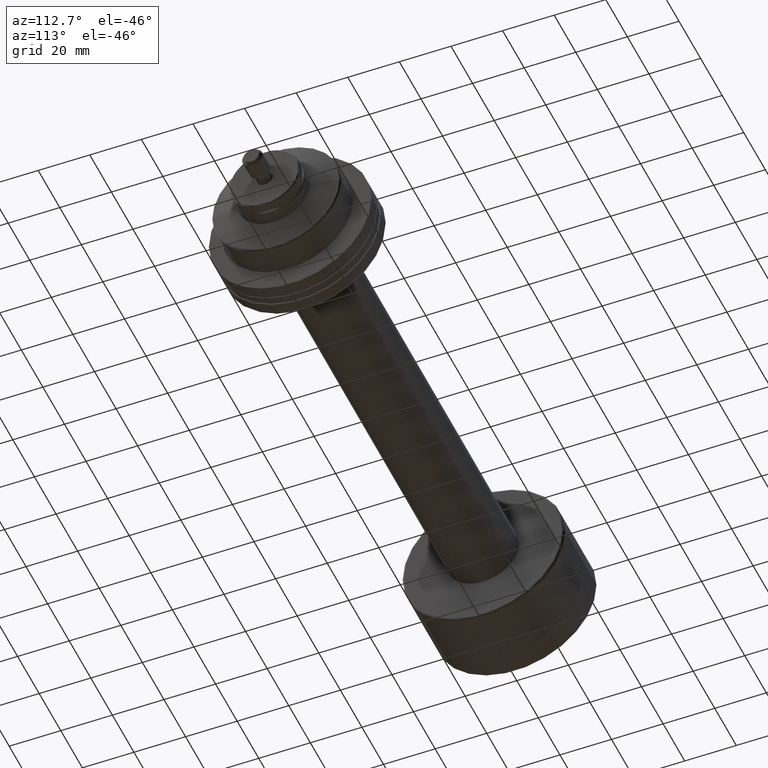
[diagram: clean part render]
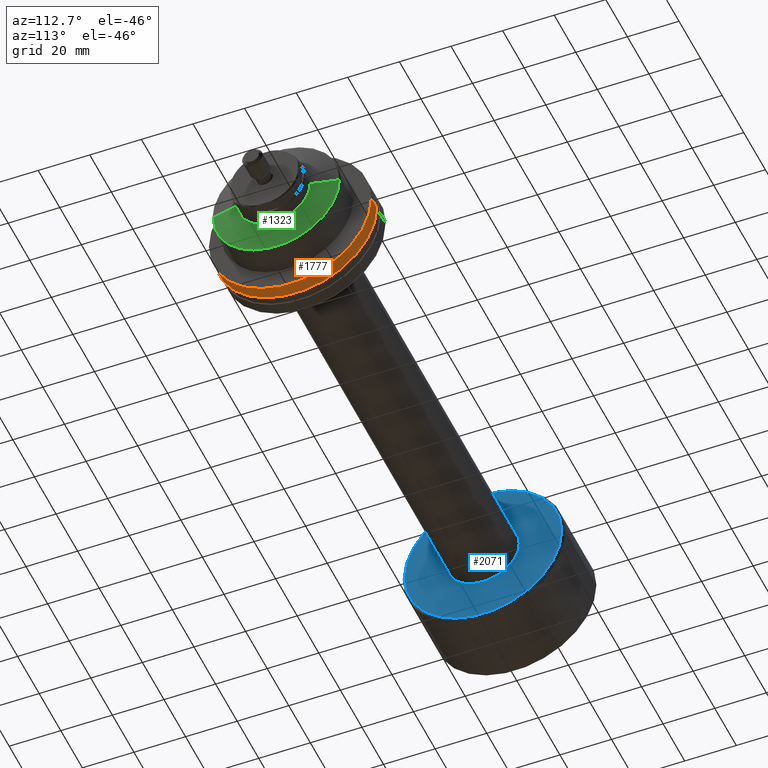
[diagram: same view with three faces highlighted in distinct colors, each labeled with its STEP entity id]
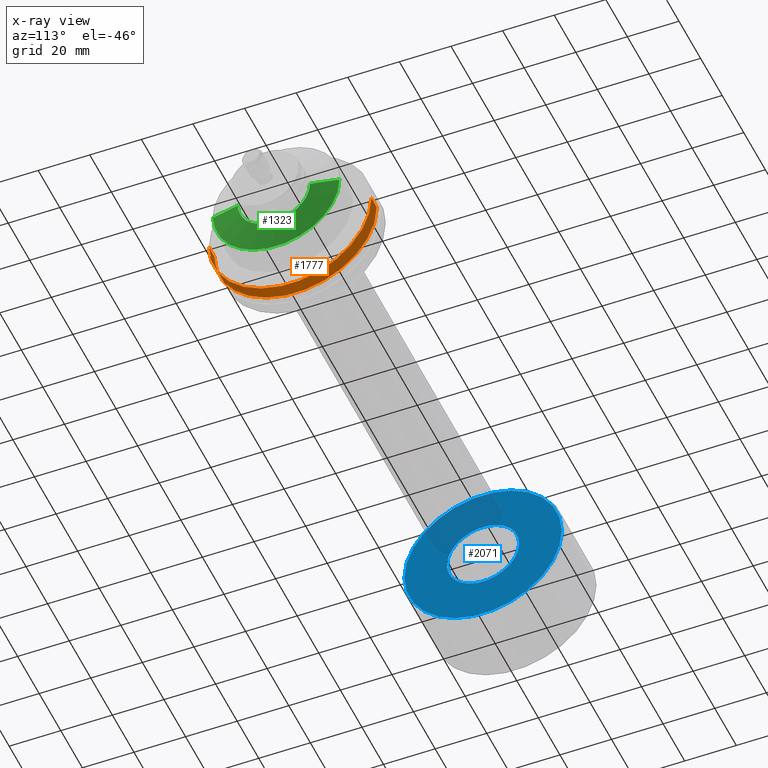
[diagram: x-ray of the same camera — body ghosted, the three highlighted faces saturated]
A machine part, auxiliary view with three faces highlighted in distinct colors.
The next image is the same camera in x-ray (body ghosted, the three faces saturated) — at least one of them is partly hidden behind the body in this view.
Their STEP definitions:

[orange] entity #1777 — the highlighted cylindrical surface (partial cylindrical patch) has radius 31.5 mm, axis along (1, 0, 0).
#92 = CARTESIAN_POINT ( 'NONE',  ( -18.00000000000005684, 2.371756733105773926E-14, 0.000000000000000000 ) ) ;
#94 = EDGE_CURVE ( 'NONE', #164, #2602, #2650, .T. ) ;
#133 = VECTOR ( 'NONE', #1400, 1000.000000000000000 ) ;
#164 = VERTEX_POINT ( 'NONE', #2459 ) ;
#171 = EDGE_CURVE ( 'NONE', #1773, #164, #2422, .T. ) ;
#172 = CARTESIAN_POINT ( 'NONE',  ( -30.28002276692732408, 0.000000000000000000, 0.000000000000000000 ) ) ;
#206 = ORIENTED_EDGE ( 'NONE', *, *, #171, .F. ) ;
#343 = EDGE_CURVE ( 'NONE', #379, #2602, #1014, .T. ) ;
#379 = VERTEX_POINT ( 'NONE', #2546 ) ;
#402 = DIRECTION ( 'NONE',  ( 1.000000000000000000, 1.931394410353556421E-15, -0.000000000000000000 ) ) ;
#577 = AXIS2_PLACEMENT_3D ( 'NONE', #92, #1153, #2631 ) ;
#707 = EDGE_CURVE ( 'NONE', #1773, #379, #1522, .T. ) ;
#791 = CARTESIAN_POINT ( 'NONE',  ( -30.28002276692738803, 31.50000000000001421, 0.000000000000000000 ) ) ;
#799 = DIRECTION ( 'NONE',  ( 1.000000000000000000, 1.931394410353556421E-15, -0.000000000000000000 ) ) ;
#1014 = LINE ( 'NONE', #791, #133 ) ;
#1087 = AXIS2_PLACEMENT_3D ( 'NONE', #172, #402, #1237 ) ;
#1153 = DIRECTION ( 'NONE',  ( 1.000000000000000000, 1.931394410353556421E-15, -0.000000000000000000 ) ) ;
#1165 = CARTESIAN_POINT ( 'NONE',  ( -30.28002276692726014, -31.50000000000001421, 3.857637417314164267E-15 ) ) ;
#1191 = CARTESIAN_POINT ( 'NONE',  ( -23.00000000000006040, 1.406059527928995005E-14, 0.000000000000000000 ) ) ;
#1215 = DIRECTION ( 'NONE',  ( -1.982541115402064518E-15, 1.000000000000000000, 0.000000000000000000 ) ) ;
#1231 = VECTOR ( 'NONE', #2022, 1000.000000000000000 ) ;
#1237 = DIRECTION ( 'NONE',  ( -1.982541115402064518E-15, 1.000000000000000000, 0.000000000000000000 ) ) ;
#1244 = CARTESIAN_POINT ( 'NONE',  ( -18.00000000000012079, 31.50000000000004263, 0.000000000000000000 ) ) ;
#1400 = DIRECTION ( 'NONE',  ( 1.000000000000000000, 1.931394410353556421E-15, -0.000000000000000000 ) ) ;
#1522 = CIRCLE ( 'NONE', #2699, 31.50000000000001421 ) ;
#1561 = ORIENTED_EDGE ( 'NONE', *, *, #94, .F. ) ;
#1605 = ORIENTED_EDGE ( 'NONE', *, *, #343, .T. ) ;
#1661 = EDGE_LOOP ( 'NONE', ( #206, #1769, #1605, #1561 ) ) ;
#1673 = CARTESIAN_POINT ( 'NONE',  ( -23.00000000000000000, -31.50000000000000000, 3.857637417314164267E-15 ) ) ;
#1769 = ORIENTED_EDGE ( 'NONE', *, *, #707, .T. ) ;
#1773 = VERTEX_POINT ( 'NONE', #1673 ) ;
#1777 = ADVANCED_FACE ( 'NONE', ( #2099 ), #2317, .T. ) ;
#2022 = DIRECTION ( 'NONE',  ( 1.000000000000000000, 1.931394410353556421E-15, -0.000000000000000000 ) ) ;
#2099 = FACE_OUTER_BOUND ( 'NONE', #1661, .T. ) ;
#2317 = CYLINDRICAL_SURFACE ( 'NONE', #1087, 31.50000000000001421 ) ;
#2422 = LINE ( 'NONE', #1165, #1231 ) ;
#2459 = CARTESIAN_POINT ( 'NONE',  ( -17.99999999999999645, -31.50000000000000000, 3.857637417314164267E-15 ) ) ;
#2546 = CARTESIAN_POINT ( 'NONE',  ( -23.00000000000012434, 31.50000000000002842, 0.000000000000000000 ) ) ;
#2602 = VERTEX_POINT ( 'NONE', #1244 ) ;
#2631 = DIRECTION ( 'NONE',  ( -1.982541115402063729E-15, 1.000000000000000000, 0.000000000000000000 ) ) ;
#2650 = CIRCLE ( 'NONE', #577, 31.50000000000002132 ) ;
#2699 = AXIS2_PLACEMENT_3D ( 'NONE', #1191, #799, #1215 ) ;

[blue] entity #2071 — the highlighted planar face has unit normal (-1, -0, 0).
#26 = ORIENTED_EDGE ( 'NONE', *, *, #2135, .T. ) ;
#65 = ORIENTED_EDGE ( 'NONE', *, *, #1971, .F. ) ;
#118 = FACE_BOUND ( 'NONE', #728, .T. ) ;
#224 = DIRECTION ( 'NONE',  ( -1.000000000000000000, -1.069542322069065801E-17, -0.000000000000000000 ) ) ;
#504 = CARTESIAN_POINT ( 'NONE',  ( 31.20000000000001350, 3.336972044855486395E-16, 0.000000000000000000 ) ) ;
#601 = ORIENTED_EDGE ( 'NONE', *, *, #996, .F. ) ;
#716 = VERTEX_POINT ( 'NONE', #780 ) ;
#728 = EDGE_LOOP ( 'NONE', ( #2320, #26 ) ) ;
#776 = CARTESIAN_POINT ( 'NONE',  ( 31.20000000000001350, 3.336972044855486395E-16, 0.000000000000000000 ) ) ;
#780 = CARTESIAN_POINT ( 'NONE',  ( 31.20000000000001350, -13.99999999999999822, 0.000000000000000000 ) ) ;
#802 = VERTEX_POINT ( 'NONE', #826 ) ;
#826 = CARTESIAN_POINT ( 'NONE',  ( 31.20000000000001350, 30.50000000000000000, 3.796405077356795115E-15 ) ) ;
#870 = CARTESIAN_POINT ( 'NONE',  ( 31.20000000000001350, 13.99999999999999822, 1.714505518806300357E-15 ) ) ;
#871 = CARTESIAN_POINT ( 'NONE',  ( 31.20000000000001350, 3.336972044855486395E-16, 0.000000000000000000 ) ) ;
#873 = DIRECTION ( 'NONE',  ( 0.000000000000000000, -1.000000000000000000, 0.000000000000000000 ) ) ;
#936 = DIRECTION ( 'NONE',  ( 0.000000000000000000, -1.000000000000000000, 0.000000000000000000 ) ) ;
#955 = CIRCLE ( 'NONE', #1167, 30.50000000000000000 ) ;
#971 = PLANE ( 'NONE',  #1533 ) ;
#996 = EDGE_CURVE ( 'NONE', #1267, #802, #955, .T. ) ;
#1136 = AXIS2_PLACEMENT_3D ( 'NONE', #776, #2478, #1263 ) ;
#1148 = FACE_OUTER_BOUND ( 'NONE', #2414, .T. ) ;
#1167 = AXIS2_PLACEMENT_3D ( 'NONE', #2230, #2012, #2044 ) ;
#1263 = DIRECTION ( 'NONE',  ( 0.000000000000000000, -1.000000000000000000, 0.000000000000000000 ) ) ;
#1267 = VERTEX_POINT ( 'NONE', #1855 ) ;
#1452 = CARTESIAN_POINT ( 'NONE',  ( 31.20000000000001350, -13.99999999999999822, 0.000000000000000000 ) ) ;
#1492 = VERTEX_POINT ( 'NONE', #870 ) ;
#1533 = AXIS2_PLACEMENT_3D ( 'NONE', #1452, #2083, #2316 ) ;
#1701 = CIRCLE ( 'NONE', #2656, 13.99999999999999822 ) ;
#1824 = AXIS2_PLACEMENT_3D ( 'NONE', #871, #2534, #936 ) ;
#1855 = CARTESIAN_POINT ( 'NONE',  ( 31.20000000000001350, -30.50000000000000000, 0.000000000000000000 ) ) ;
#1873 = CIRCLE ( 'NONE', #1824, 13.99999999999999822 ) ;
#1971 = EDGE_CURVE ( 'NONE', #802, #1267, #2024, .T. ) ;
#2012 = DIRECTION ( 'NONE',  ( -1.000000000000000000, -1.069542322069065801E-17, -0.000000000000000000 ) ) ;
#2024 = CIRCLE ( 'NONE', #1136, 30.50000000000000000 ) ;
#2044 = DIRECTION ( 'NONE',  ( 0.000000000000000000, -1.000000000000000000, 0.000000000000000000 ) ) ;
#2071 = ADVANCED_FACE ( 'NONE', ( #1148, #118 ), #971, .F. ) ;
#2083 = DIRECTION ( 'NONE',  ( -1.000000000000000000, -1.069542322069065801E-17, 0.000000000000000000 ) ) ;
#2135 = EDGE_CURVE ( 'NONE', #1492, #716, #1701, .T. ) ;
#2230 = CARTESIAN_POINT ( 'NONE',  ( 31.20000000000001350, 3.336972044855486395E-16, 0.000000000000000000 ) ) ;
#2316 = DIRECTION ( 'NONE',  ( 1.069542322069065801E-17, -1.000000000000000000, 0.000000000000000000 ) ) ;
#2320 = ORIENTED_EDGE ( 'NONE', *, *, #2486, .T. ) ;
#2414 = EDGE_LOOP ( 'NONE', ( #601, #65 ) ) ;
#2478 = DIRECTION ( 'NONE',  ( -1.000000000000000000, -1.069542322069065801E-17, -0.000000000000000000 ) ) ;
#2486 = EDGE_CURVE ( 'NONE', #716, #1492, #1873, .T. ) ;
#2534 = DIRECTION ( 'NONE',  ( -1.000000000000000000, -1.069542322069065801E-17, -0.000000000000000000 ) ) ;
#2656 = AXIS2_PLACEMENT_3D ( 'NONE', #504, #224, #873 ) ;

[green] entity #1323 — the highlighted conical surface has half-angle 78.241 deg.
#16 = DIRECTION ( 'NONE',  ( -1.000000000000000000, -1.931394410353556421E-15, 0.000000000000000000 ) ) ;
#28 = DIRECTION ( 'NONE',  ( 1.920586705545750655E-15, -1.000000000000000000, 0.000000000000000000 ) ) ;
#36 = CARTESIAN_POINT ( 'NONE',  ( -2.914285714286113826, 6.162975822039154730E-30, -14.00000000000000178 ) ) ;
#115 = ORIENTED_EDGE ( 'NONE', *, *, #2443, .T. ) ;
#139 = CARTESIAN_POINT ( 'NONE',  ( -5.100000000000759037, 24.50000000000006750, 3.000384657911017441E-15 ) ) ;
#408 = AXIS2_PLACEMENT_3D ( 'NONE', #1049, #16, #626 ) ;
#439 = ORIENTED_EDGE ( 'NONE', *, *, #1370, .F. ) ;
#454 = DIRECTION ( 'NONE',  ( -1.947138595484169474E-15, 1.000000000000000000, 0.000000000000000000 ) ) ;
#618 = CARTESIAN_POINT ( 'NONE',  ( -2.914285714286113826, 5.285403157867643656E-14, 0.000000000000000000 ) ) ;
#626 = DIRECTION ( 'NONE',  ( 1.920586705545750655E-15, -1.000000000000000000, 0.000000000000000000 ) ) ;
#647 = CIRCLE ( 'NONE', #2210, 24.50000000000002132 ) ;
#669 = VERTEX_POINT ( 'NONE', #139 ) ;
#711 = CARTESIAN_POINT ( 'NONE',  ( -2.914285714286140472, 14.00000000000005329, 2.357445088358656335E-15 ) ) ;
#771 = CIRCLE ( 'NONE', #1386, 14.00000000000000178 ) ;
#827 = ORIENTED_EDGE ( 'NONE', *, *, #941, .T. ) ;
#855 = DIRECTION ( 'NONE',  ( -1.000000000000000000, -1.931394410353556421E-15, 0.000000000000000000 ) ) ;
#856 = CIRCLE ( 'NONE', #408, 14.00000000000000178 ) ;
#920 = VECTOR ( 'NONE', #2405, 1000.000000000000114 ) ;
#941 = EDGE_CURVE ( 'NONE', #1485, #1513, #771, .T. ) ;
#1036 = DIRECTION ( 'NONE',  ( 1.947138595484169474E-15, -1.000000000000000000, 0.000000000000000000 ) ) ;
#1049 = CARTESIAN_POINT ( 'NONE',  ( -2.914285714286113826, 5.285403157867643656E-14, 0.000000000000000000 ) ) ;
#1064 = DIRECTION ( 'NONE',  ( -1.000000000000000000, -1.931394410353556421E-15, 0.000000000000000000 ) ) ;
#1113 = CARTESIAN_POINT ( 'NONE',  ( -2.914285714286086737, -13.99999999999995026, 0.000000000000000000 ) ) ;
#1253 = CARTESIAN_POINT ( 'NONE',  ( -5.100000000000711964, 4.863255522461734884E-14, 0.000000000000000000 ) ) ;
#1323 = ADVANCED_FACE ( 'NONE', ( #1671 ), #2552, .T. ) ;
#1351 = AXIS2_PLACEMENT_3D ( 'NONE', #1253, #1064, #1036 ) ;
#1370 = EDGE_CURVE ( 'NONE', #2198, #669, #1450, .T. ) ;
#1385 = CARTESIAN_POINT ( 'NONE',  ( -5.100000000000664002, -24.49999999999997513, 0.000000000000000000 ) ) ;
#1386 = AXIS2_PLACEMENT_3D ( 'NONE', #618, #855, #28 ) ;
#1450 = LINE ( 'NONE', #2314, #1617 ) ;
#1485 = VERTEX_POINT ( 'NONE', #36 ) ;
#1513 = VERTEX_POINT ( 'NONE', #1113 ) ;
#1519 = DIRECTION ( 'NONE',  ( 1.000000000000000000, 1.931394410353556421E-15, -0.000000000000000000 ) ) ;
#1617 = VECTOR ( 'NONE', #1695, 999.9999999999998863 ) ;
#1671 = FACE_OUTER_BOUND ( 'NONE', #2413, .T. ) ;
#1695 = DIRECTION ( 'NONE',  ( -0.2037946783941950168, 0.9790136511092206728, 1.198945934152471440E-16 ) ) ;
#1830 = ORIENTED_EDGE ( 'NONE', *, *, #1972, .T. ) ;
#1972 = EDGE_CURVE ( 'NONE', #2350, #669, #647, .T. ) ;
#2037 = EDGE_CURVE ( 'NONE', #1513, #2350, #2134, .T. ) ;
#2080 = ORIENTED_EDGE ( 'NONE', *, *, #2037, .T. ) ;
#2134 = LINE ( 'NONE', #2154, #920 ) ;
#2154 = CARTESIAN_POINT ( 'NONE',  ( -5.100000000000664002, -24.49999999999997158, 0.000000000000000000 ) ) ;
#2175 = CARTESIAN_POINT ( 'NONE',  ( -5.100000000000711964, 4.863255522461734884E-14, 0.000000000000000000 ) ) ;
#2198 = VERTEX_POINT ( 'NONE', #711 ) ;
#2210 = AXIS2_PLACEMENT_3D ( 'NONE', #2175, #1519, #454 ) ;
#2314 = CARTESIAN_POINT ( 'NONE',  ( -5.100000000000759037, 24.50000000000007105, 3.000384657911017835E-15 ) ) ;
#2350 = VERTEX_POINT ( 'NONE', #1385 ) ;
#2405 = DIRECTION ( 'NONE',  ( -0.2037946783941911866, -0.9790136511092213389, 0.000000000000000000 ) ) ;
#2413 = EDGE_LOOP ( 'NONE', ( #439, #115, #827, #2080, #1830 ) ) ;
#2443 = EDGE_CURVE ( 'NONE', #2198, #1485, #856, .T. ) ;
#2552 = CONICAL_SURFACE ( 'NONE', #1351, 24.50000000000002132, 1.365563936788661614 ) ;